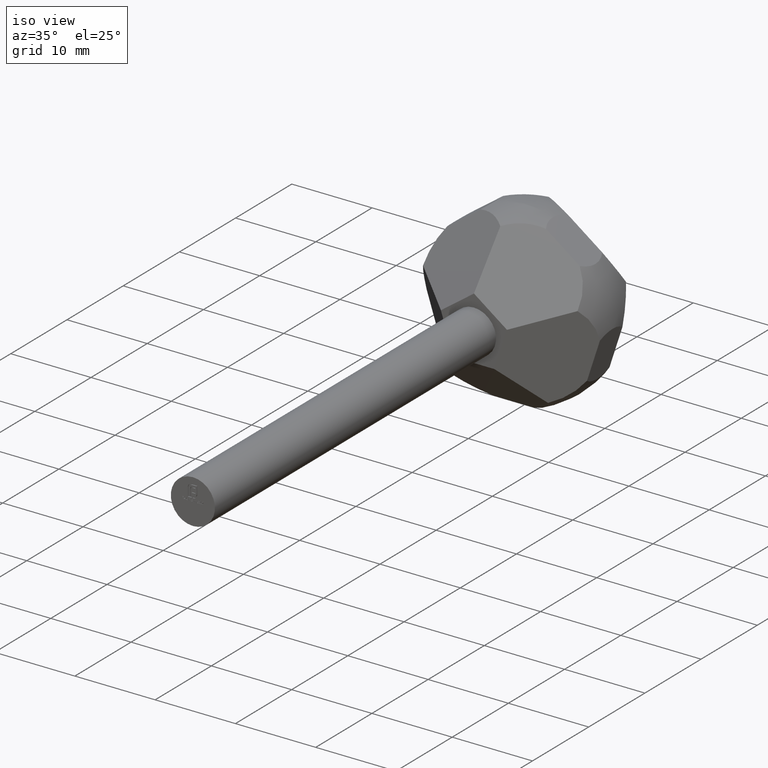
[diagram: clean part render]
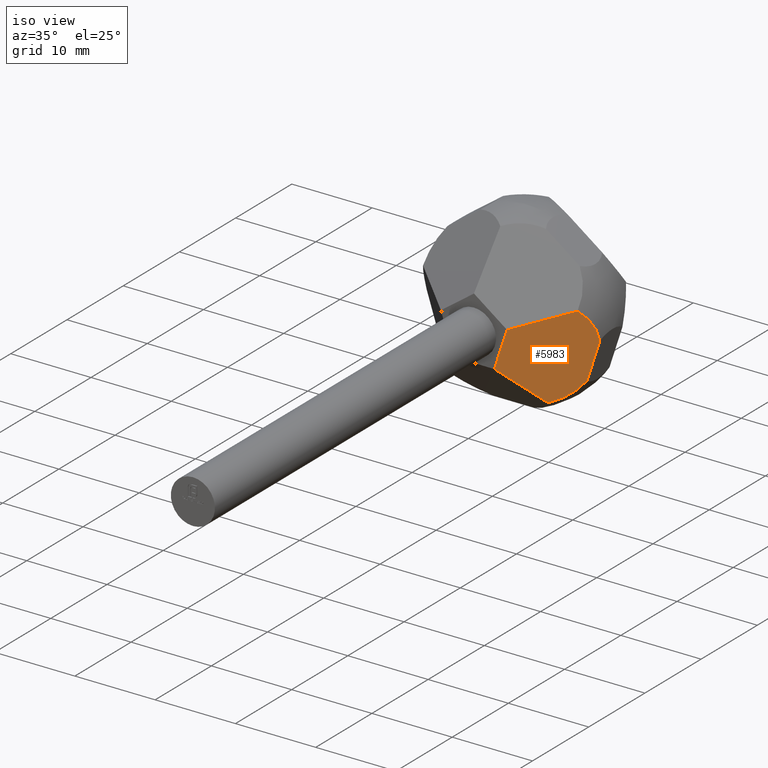
[diagram: same view with one face highlighted and labeled with its STEP entity id]
A machine part, iso view. The second image highlights one B-rep face of the part: STEP entity #5983.
In plain terms, the highlighted planar face has unit normal (0.6725, -0.7071, -0.2185).
Its self-contained STEP definition (entity closure, byte-faithful):
#111 = EDGE_CURVE ( 'NONE', #8562, #10342, #10858, .T. ) ;
#443 = CARTESIAN_POINT ( 'NONE',  ( 3.328697807033045297, -9.000000000000000000, -1.081559480312318078 ) ) ;
#827 = EDGE_CURVE ( 'NONE', #9301, #10342, #2198, .T. ) ;
#893 = LINE ( 'NONE', #7052, #11722 ) ;
#957 = CARTESIAN_POINT ( 'NONE',  ( 2.011895262364356007, -9.730863735000102821, -2.769136264999904729 ) ) ;
#1160 = VECTOR ( 'NONE', #5762, 1000.000000000000114 ) ;
#1180 = DIRECTION ( 'NONE',  ( 0.7393870239935154132, 0.6289601696450953794, 0.2402414072345258889 ) ) ;
#1400 = DIRECTION ( 'NONE',  ( -0.3090169943749473402, -0.000000000000000000, -0.9510565162951536422 ) ) ;
#1422 = CARTESIAN_POINT ( 'NONE',  ( 10.78894312308856840, -1.999999999999982681, -0.7737611302979399142 ) ) ;
#1625 = CARTESIAN_POINT ( 'NONE',  ( 5.944103226844720034, -6.249999999999987566, -1.931356214843423791 ) ) ;
#1756 = DIRECTION ( 'NONE',  ( 0.6724985119639586006, -0.7071067811865462405, -0.2185080122244108525 ) ) ;
#1884 = VERTEX_POINT ( 'NONE', #10567 ) ;
#2198 = CIRCLE ( 'NONE', #7223, 6.547900426854396549 ) ;
#2437 = EDGE_CURVE ( 'NONE', #8562, #1884, #893, .T. ) ;
#2836 = AXIS2_PLACEMENT_3D ( 'NONE', #443, #11614, #4226 ) ;
#3065 = CARTESIAN_POINT ( 'NONE',  ( 3.255314916310414475, -9.730863735000102821, 1.057715933750029480 ) ) ;
#3386 = ORIENTED_EDGE ( 'NONE', *, *, #3568, .T. ) ;
#3444 = DIRECTION ( 'NONE',  ( 0.6724985119639586006, -0.7071067811865462405, -0.2185080122244108525 ) ) ;
#3568 = EDGE_CURVE ( 'NONE', #8927, #9301, #6639, .T. ) ;
#4187 = CARTESIAN_POINT ( 'NONE',  ( 5.947757503924629319, -4.313614104251378478, -8.186385895748610864 ) ) ;
#4226 = DIRECTION ( 'NONE',  ( 0.3090169943749472847, 0.000000000000000000, 0.9510565162951536422 ) ) ;
#4276 = CARTESIAN_POINT ( 'NONE',  ( 4.114496766047321508, -9.000000000000000000, 1.336881039375372282 ) ) ;
#5510 = LINE ( 'NONE', #957, #11719 ) ;
#5762 = DIRECTION ( 'NONE',  ( 0.3090169943749472847, 0.000000000000000000, 0.9510565162951536422 ) ) ;
#5929 = ORIENTED_EDGE ( 'NONE', *, *, #11502, .F. ) ;
#5983 = ADVANCED_FACE ( 'NONE', ( #9334 ), #6846, .T. ) ;
#6612 = CARTESIAN_POINT ( 'NONE',  ( 12.34349029814193344, -1.999999999999983569, 4.010643118126105300 ) ) ;
#6639 = LINE ( 'NONE', #6612, #1160 ) ;
#6846 = PLANE ( 'NONE',  #2836 ) ;
#7052 = CARTESIAN_POINT ( 'NONE',  ( 0.9713009299902224392, -9.000000000000000000, -8.336881039375372282 ) ) ;
#7077 = EDGE_LOOP ( 'NONE', ( #7952, #3386, #10776, #7309, #7427, #5929 ) ) ;
#7223 = AXIS2_PLACEMENT_3D ( 'NONE', #9131, #1756, #8118 ) ;
#7309 = ORIENTED_EDGE ( 'NONE', *, *, #111, .F. ) ;
#7427 = ORIENTED_EDGE ( 'NONE', *, *, #2437, .T. ) ;
#7754 = CARTESIAN_POINT ( 'NONE',  ( 9.183243719109656311, -1.999999999999982681, -5.715595751575953010 ) ) ;
#7952 = ORIENTED_EDGE ( 'NONE', *, *, #10484, .T. ) ;
#8118 = DIRECTION ( 'NONE',  ( -0.7246170400674455392, -0.6891517577746528733, 0.000000000000000000 ) ) ;
#8377 = VECTOR ( 'NONE', #1180, 1000.000000000000114 ) ;
#8562 = VERTEX_POINT ( 'NONE', #4276 ) ;
#8665 = AXIS2_PLACEMENT_3D ( 'NONE', #1625, #3444, #10903 ) ;
#8927 = VERTEX_POINT ( 'NONE', #7754 ) ;
#9131 = CARTESIAN_POINT ( 'NONE',  ( 5.944103226844720034, -6.249999999999987566, -1.931356214843423791 ) ) ;
#9301 = VERTEX_POINT ( 'NONE', #1422 ) ;
#9330 = DIRECTION ( 'NONE',  ( -0.4569663116686265014, -0.6289601696450953794, 0.6289601696450933810 ) ) ;
#9334 = FACE_OUTER_BOUND ( 'NONE', #7077, .T. ) ;
#9878 = CIRCLE ( 'NONE', #8665, 6.547900426854396549 ) ;
#10244 = CARTESIAN_POINT ( 'NONE',  ( 9.623673798192282192, -4.313614104251377590, 3.126921167153217773 ) ) ;
#10342 = VERTEX_POINT ( 'NONE', #10244 ) ;
#10451 = VERTEX_POINT ( 'NONE', #4187 ) ;
#10484 = EDGE_CURVE ( 'NONE', #10451, #8927, #9878, .T. ) ;
#10567 = CARTESIAN_POINT ( 'NONE',  ( 2.542898848018769975, -9.000000000000000000, -3.500000000000006217 ) ) ;
#10776 = ORIENTED_EDGE ( 'NONE', *, *, #827, .T. ) ;
#10858 = LINE ( 'NONE', #3065, #8377 ) ;
#10903 = DIRECTION ( 'NONE',  ( -0.7246170400674455392, -0.6891517577746528733, 0.000000000000000000 ) ) ;
#11502 = EDGE_CURVE ( 'NONE', #10451, #1884, #5510, .T. ) ;
#11614 = DIRECTION ( 'NONE',  ( 0.6724985119639587117, -0.7071067811865462405, -0.2185080122244108525 ) ) ;
#11719 = VECTOR ( 'NONE', #9330, 999.9999999999998863 ) ;
#11722 = VECTOR ( 'NONE', #1400, 1000.000000000000000 ) ;